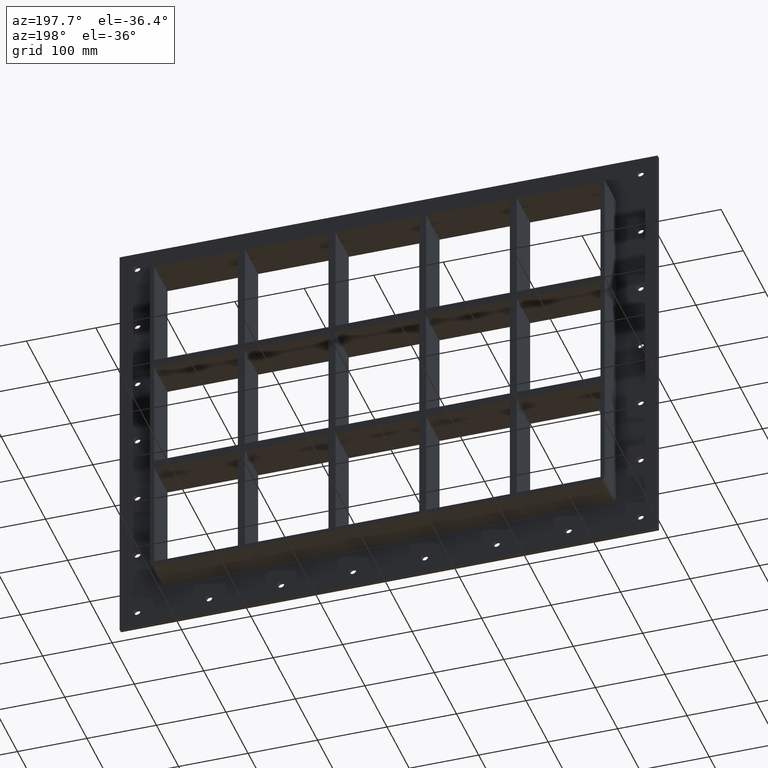
[diagram: clean part render]
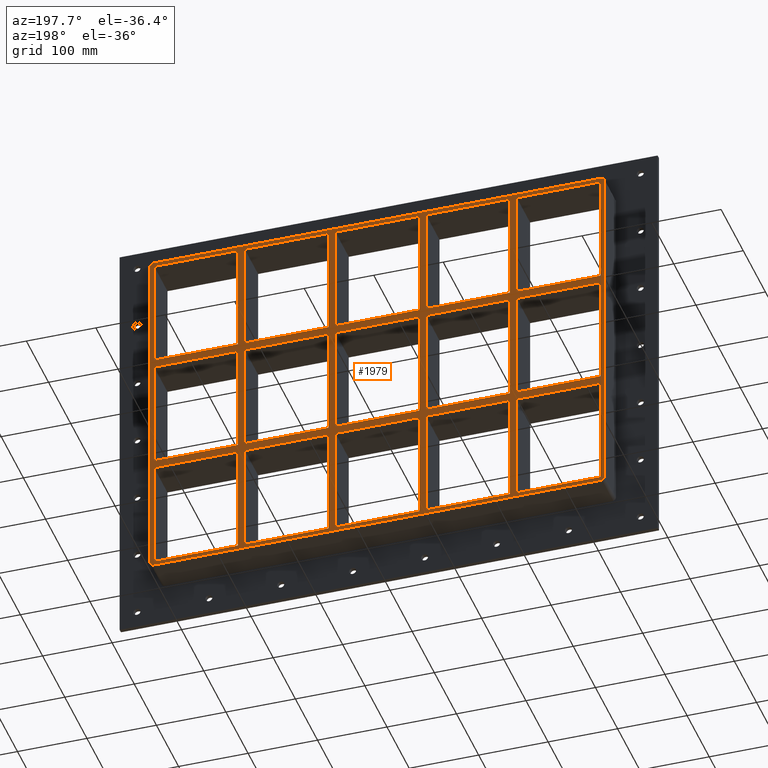
[diagram: same view with one face highlighted and labeled with its STEP entity id]
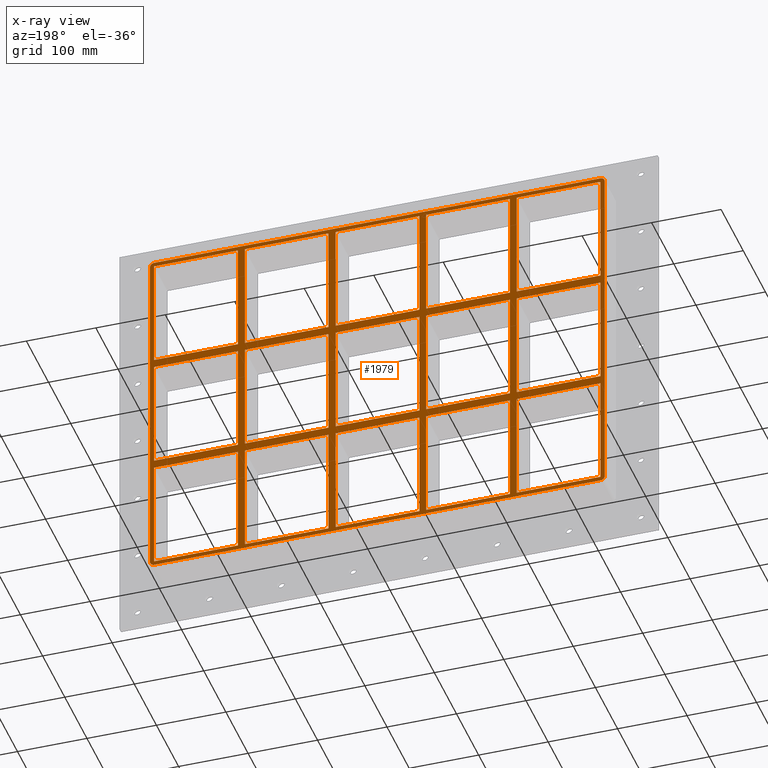
[diagram: x-ray of the same camera — body ghosted, the highlighted face saturated]
A machine part, auxiliary view. The second image highlights one B-rep face of the part: STEP entity #1979.
The next image is the same camera in x-ray: the body ghosted, the highlighted face saturated — about 0% of this face is hidden behind the body in this view.
In plain terms, the highlighted planar face has unit normal (0, 1, 0).
Its self-contained STEP definition (entity closure, byte-faithful):
#803=CARTESIAN_POINT('',(-200.75000000000134,57.0,79.749999999990564));
#804=VERTEX_POINT('',#803);
#819=CARTESIAN_POINT('',(-321.24999999999972,57.0,79.749999999990536));
#820=VERTEX_POINT('',#819);
#827=CARTESIAN_POINT('',(-200.75000000000136,57.0,79.749999999990564));
#828=DIRECTION('',(-1.0,0.0,0.0));
#829=VECTOR('',#828,120.49999999999841);
#830=LINE('',#827,#829);
#831=EDGE_CURVE('',#804,#820,#830,.T.);
#843=CARTESIAN_POINT('',(-70.250000000001407,57.0,79.749999999990607));
#844=VERTEX_POINT('',#843);
#859=CARTESIAN_POINT('',(-190.75000000000728,57.0,79.749999999990564));
#860=VERTEX_POINT('',#859);
#867=CARTESIAN_POINT('',(-70.250000000001421,57.0,79.749999999990607));
#868=DIRECTION('',(-1.0,0.0,0.0));
#869=VECTOR('',#868,120.50000000000585);
#870=LINE('',#867,#869);
#871=EDGE_CURVE('',#844,#860,#870,.T.);
#883=CARTESIAN_POINT('',(60.249999999998671,57.0,79.749999999990649));
#884=VERTEX_POINT('',#883);
#899=CARTESIAN_POINT('',(-60.250000000007304,57.0,79.749999999990607));
#900=VERTEX_POINT('',#899);
#907=CARTESIAN_POINT('',(60.249999999998693,57.0,79.749999999990635));
#908=DIRECTION('',(-1.0,0.0,0.0));
#909=VECTOR('',#908,120.50000000000597);
#910=LINE('',#907,#909);
#911=EDGE_CURVE('',#884,#900,#910,.T.);
#921=CARTESIAN_POINT('',(200.74999999999278,57.0,79.749999999990692));
#922=VERTEX_POINT('',#921);
#931=CARTESIAN_POINT('',(321.25,57.0,79.74999999999072));
#932=VERTEX_POINT('',#931);
#933=CARTESIAN_POINT('',(321.25,57.0,79.74999999999072));
#934=DIRECTION('',(-1.0,0.0,0.0));
#935=VECTOR('',#934,120.50000000000722);
#936=LINE('',#933,#935);
#937=EDGE_CURVE('',#932,#922,#936,.T.);
#963=CARTESIAN_POINT('',(190.74999999999869,57.0,79.749999999990692));
#964=VERTEX_POINT('',#963);
#979=CARTESIAN_POINT('',(70.249999999992738,57.0,79.749999999990649));
#980=VERTEX_POINT('',#979);
#987=CARTESIAN_POINT('',(190.74999999999869,57.0,79.749999999990678));
#988=DIRECTION('',(-1.0,0.0,0.0));
#989=VECTOR('',#988,120.50000000000597);
#990=LINE('',#987,#989);
#991=EDGE_CURVE('',#964,#980,#990,.T.);
#1001=CARTESIAN_POINT('',(-200.75000000000134,57.0,91.750000000000043));
#1002=VERTEX_POINT('',#1001);
#1011=CARTESIAN_POINT('',(-321.24999999999972,57.0,91.750000000000085));
#1012=VERTEX_POINT('',#1011);
#1013=CARTESIAN_POINT('',(-321.24999999999972,57.0,91.750000000000085));
#1014=DIRECTION('',(1.0,0.0,0.0));
#1015=VECTOR('',#1014,120.49999999999838);
#1016=LINE('',#1013,#1015);
#1017=EDGE_CURVE('',#1012,#1002,#1016,.T.);
#1043=CARTESIAN_POINT('',(200.74999999999278,57.0,91.750000000000085));
#1044=VERTEX_POINT('',#1043);
#1059=CARTESIAN_POINT('',(321.25,57.0,91.750000000000085));
#1060=VERTEX_POINT('',#1059);
#1067=CARTESIAN_POINT('',(200.74999999999278,57.0,91.750000000000085));
#1068=DIRECTION('',(1.0,0.0,0.0));
#1069=VECTOR('',#1068,120.50000000000728);
#1070=LINE('',#1067,#1069);
#1071=EDGE_CURVE('',#1044,#1060,#1070,.T.);
#1081=CARTESIAN_POINT('',(-70.250000000001336,57.0,91.750000000000085));
#1082=VERTEX_POINT('',#1081);
#1091=CARTESIAN_POINT('',(-190.75000000000728,57.0,91.750000000000085));
#1092=VERTEX_POINT('',#1091);
#1093=CARTESIAN_POINT('',(-190.75000000000728,57.0,91.750000000000085));
#1094=DIRECTION('',(1.0,0.0,0.0));
#1095=VECTOR('',#1094,120.50000000000594);
#1096=LINE('',#1093,#1095);
#1097=EDGE_CURVE('',#1092,#1082,#1096,.T.);
#1121=CARTESIAN_POINT('',(60.249999999998636,57.0,91.750000000000085));
#1122=VERTEX_POINT('',#1121);
#1131=CARTESIAN_POINT('',(-60.250000000007269,57.0,91.750000000000085));
#1132=VERTEX_POINT('',#1131);
#1133=CARTESIAN_POINT('',(-60.250000000007276,57.0,91.750000000000085));
#1134=DIRECTION('',(1.0,0.0,0.0));
#1135=VECTOR('',#1134,120.50000000000591);
#1136=LINE('',#1133,#1135);
#1137=EDGE_CURVE('',#1132,#1122,#1136,.T.);
#1161=CARTESIAN_POINT('',(190.74999999999869,57.0,91.750000000000085));
#1162=VERTEX_POINT('',#1161);
#1171=CARTESIAN_POINT('',(70.249999999992738,57.0,91.750000000000085));
#1172=VERTEX_POINT('',#1171);
#1173=CARTESIAN_POINT('',(70.249999999992724,57.0,91.750000000000085));
#1174=DIRECTION('',(1.0,0.0,0.0));
#1175=VECTOR('',#1174,120.50000000000597);
#1176=LINE('',#1173,#1175);
#1177=EDGE_CURVE('',#1172,#1162,#1176,.T.);
#1202=CARTESIAN_POINT('',(-321.25,57.0,251.25000000000006));
#1203=VERTEX_POINT('',#1202);
#1204=CARTESIAN_POINT('',(-321.25,57.0,251.25000000000009));
#1205=DIRECTION('',(0.0,0.0,-1.0));
#1206=VECTOR('',#1205,159.5);
#1207=LINE('',#1204,#1206);
#1208=EDGE_CURVE('',#1203,#1012,#1207,.T.);
#1233=CARTESIAN_POINT('',(321.25,57.0,-79.749999999999943));
#1234=VERTEX_POINT('',#1233);
#1235=CARTESIAN_POINT('',(321.25000000000011,57.0,-79.749999999999929));
#1236=DIRECTION('',(0.0,0.0,1.0));
#1237=VECTOR('',#1236,159.49999999999065);
#1238=LINE('',#1235,#1237);
#1239=EDGE_CURVE('',#1234,#932,#1238,.T.);
#1272=CARTESIAN_POINT('',(321.25000000000011,57.0,251.25000000000006));
#1273=VERTEX_POINT('',#1272);
#1280=CARTESIAN_POINT('',(321.25000000000011,57.0,91.750000000000071));
#1281=DIRECTION('',(0.0,0.0,1.0));
#1282=VECTOR('',#1281,159.5);
#1283=LINE('',#1280,#1282);
#1284=EDGE_CURVE('',#1060,#1273,#1283,.T.);
#1303=CARTESIAN_POINT('',(190.74999999999869,57.0,251.25000000000006));
#1304=VERTEX_POINT('',#1303);
#1311=CARTESIAN_POINT('',(190.74999999999869,57.0,91.750000000000057));
#1312=DIRECTION('',(0.0,0.0,1.0));
#1313=VECTOR('',#1312,159.5);
#1314=LINE('',#1311,#1313);
#1315=EDGE_CURVE('',#1162,#1304,#1314,.T.);
#1326=CARTESIAN_POINT('',(200.74999999999278,57.0,251.25000000000006));
#1327=VERTEX_POINT('',#1326);
#1328=CARTESIAN_POINT('',(200.74999999999278,57.0,251.25000000000006));
#1329=DIRECTION('',(0.0,0.0,-1.0));
#1330=VECTOR('',#1329,159.5);
#1331=LINE('',#1328,#1330);
#1332=EDGE_CURVE('',#1327,#1044,#1331,.T.);
#1365=CARTESIAN_POINT('',(60.249999999998636,57.0,251.25000000000006));
#1366=VERTEX_POINT('',#1365);
#1373=CARTESIAN_POINT('',(60.249999999998657,57.0,91.750000000000057));
#1374=DIRECTION('',(0.0,0.0,1.0));
#1375=VECTOR('',#1374,159.5);
#1376=LINE('',#1373,#1375);
#1377=EDGE_CURVE('',#1122,#1366,#1376,.T.);
#1388=CARTESIAN_POINT('',(70.249999999992738,57.0,251.25000000000006));
#1389=VERTEX_POINT('',#1388);
#1390=CARTESIAN_POINT('',(70.249999999992738,57.0,251.25000000000006));
#1391=DIRECTION('',(0.0,0.0,-1.0));
#1392=VECTOR('',#1391,159.5);
#1393=LINE('',#1390,#1392);
#1394=EDGE_CURVE('',#1389,#1172,#1393,.T.);
#1427=CARTESIAN_POINT('',(-70.250000000001364,57.0,251.25000000000006));
#1428=VERTEX_POINT('',#1427);
#1435=CARTESIAN_POINT('',(-70.25000000000135,57.0,91.750000000000057));
#1436=DIRECTION('',(0.0,0.0,1.0));
#1437=VECTOR('',#1436,159.5);
#1438=LINE('',#1435,#1437);
#1439=EDGE_CURVE('',#1082,#1428,#1438,.T.);
#1450=CARTESIAN_POINT('',(-60.250000000007269,57.0,251.25000000000006));
#1451=VERTEX_POINT('',#1450);
#1452=CARTESIAN_POINT('',(-60.250000000007269,57.0,251.25000000000006));
#1453=DIRECTION('',(0.0,0.0,-1.0));
#1454=VECTOR('',#1453,159.5);
#1455=LINE('',#1452,#1454);
#1456=EDGE_CURVE('',#1451,#1132,#1455,.T.);
#1489=CARTESIAN_POINT('',(-200.75000000000136,57.0,251.25000000000006));
#1490=VERTEX_POINT('',#1489);
#1497=CARTESIAN_POINT('',(-200.75000000000136,57.0,91.750000000000057));
#1498=DIRECTION('',(0.0,0.0,1.0));
#1499=VECTOR('',#1498,159.5);
#1500=LINE('',#1497,#1499);
#1501=EDGE_CURVE('',#1002,#1490,#1500,.T.);
#1512=CARTESIAN_POINT('',(-200.75000000000131,57.0,-79.749999999999943));
#1513=VERTEX_POINT('',#1512);
#1514=CARTESIAN_POINT('',(-200.75000000000134,57.0,-79.749999999999943));
#1515=DIRECTION('',(0.0,0.0,1.0));
#1516=VECTOR('',#1515,159.49999999999051);
#1517=LINE('',#1514,#1516);
#1518=EDGE_CURVE('',#1513,#804,#1517,.T.);
#1543=CARTESIAN_POINT('',(-190.75000000000728,57.0,251.25000000000006));
#1544=VERTEX_POINT('',#1543);
#1545=CARTESIAN_POINT('',(-190.75000000000728,57.0,251.25000000000006));
#1546=DIRECTION('',(0.0,0.0,-1.0));
#1547=VECTOR('',#1546,159.5);
#1548=LINE('',#1545,#1547);
#1549=EDGE_CURVE('',#1544,#1092,#1548,.T.);
#1568=CARTESIAN_POINT('',(-5.370858E-014,57.0,0.0));
#1569=DIRECTION('',(0.0,1.0,0.0));
#1570=DIRECTION('',(0.0,0.0,1.0));
#1571=AXIS2_PLACEMENT_3D('',#1568,#1569,#1570);
#1572=PLANE('',#1571);
#1573=CARTESIAN_POINT('',(321.25,57.0,-257.25));
#1574=VERTEX_POINT('',#1573);
#1575=CARTESIAN_POINT('',(327.25,57.0,-251.25));
#1576=VERTEX_POINT('',#1575);
#1577=CARTESIAN_POINT('',(321.25,57.0,-251.25));
#1578=DIRECTION('',(0.0,-1.0,0.0));
#1579=DIRECTION('',(0.707106781186543,0.0,-0.707106781186552));
#1580=AXIS2_PLACEMENT_3D('',#1577,#1578,#1579);
#1581=CIRCLE('',#1580,6.000000000000001);
#1582=EDGE_CURVE('',#1574,#1576,#1581,.T.);
#1583=ORIENTED_EDGE('',*,*,#1582,.F.);
#1584=CARTESIAN_POINT('',(-321.25000000000011,57.0,-257.25));
#1585=VERTEX_POINT('',#1584);
#1586=CARTESIAN_POINT('',(321.25,57.0,-257.25));
#1587=DIRECTION('',(-1.0,0.0,0.0));
#1588=VECTOR('',#1587,642.50000000000011);
#1589=LINE('',#1586,#1588);
#1590=EDGE_CURVE('',#1574,#1585,#1589,.T.);
#1591=ORIENTED_EDGE('',*,*,#1590,.T.);
#1592=CARTESIAN_POINT('',(-327.25000000000011,57.0,-251.25));
#1593=VERTEX_POINT('',#1592);
#1594=CARTESIAN_POINT('',(-321.25000000000006,57.0,-251.25));
#1595=DIRECTION('',(0.0,-1.0,0.0));
#1596=DIRECTION('',(-0.707106781186552,0.0,-0.707106781186543));
#1597=AXIS2_PLACEMENT_3D('',#1594,#1595,#1596);
#1598=CIRCLE('',#1597,6.0);
#1599=EDGE_CURVE('',#1593,#1585,#1598,.T.);
#1600=ORIENTED_EDGE('',*,*,#1599,.F.);
#1601=CARTESIAN_POINT('',(-327.25000000000011,57.0,251.25));
#1602=VERTEX_POINT('',#1601);
#1603=CARTESIAN_POINT('',(-327.25000000000011,57.0,-251.25));
#1604=DIRECTION('',(0.0,0.0,1.0));
#1605=VECTOR('',#1604,502.5);
#1606=LINE('',#1603,#1605);
#1607=EDGE_CURVE('',#1593,#1602,#1606,.T.);
#1608=ORIENTED_EDGE('',*,*,#1607,.T.);
#1609=CARTESIAN_POINT('',(-321.25000000000011,57.0,257.25));
#1610=VERTEX_POINT('',#1609);
#1611=CARTESIAN_POINT('',(-321.25000000000011,57.0,251.25));
#1612=DIRECTION('',(0.0,-1.0,0.0));
#1613=DIRECTION('',(-0.707106781186543,0.0,0.707106781186552));
#1614=AXIS2_PLACEMENT_3D('',#1611,#1612,#1613);
#1615=CIRCLE('',#1614,6.000000000000001);
#1616=EDGE_CURVE('',#1610,#1602,#1615,.T.);
#1617=ORIENTED_EDGE('',*,*,#1616,.F.);
#1618=CARTESIAN_POINT('',(321.25000000000006,57.0,257.25));
#1619=VERTEX_POINT('',#1618);
#1620=CARTESIAN_POINT('',(-321.25000000000017,57.0,257.25));
#1621=DIRECTION('',(1.0,0.0,0.0));
#1622=VECTOR('',#1621,642.50000000000023);
#1623=LINE('',#1620,#1622);
#1624=EDGE_CURVE('',#1610,#1619,#1623,.T.);
#1625=ORIENTED_EDGE('',*,*,#1624,.T.);
#1626=CARTESIAN_POINT('',(327.25,57.0,251.25));
#1627=VERTEX_POINT('',#1626);
#1628=CARTESIAN_POINT('',(321.25,57.0,251.25));
#1629=DIRECTION('',(0.0,-1.0,0.0));
#1630=DIRECTION('',(0.707106781186543,0.0,0.707106781186552));
#1631=AXIS2_PLACEMENT_3D('',#1628,#1629,#1630);
#1632=CIRCLE('',#1631,6.000000000000001);
#1633=EDGE_CURVE('',#1627,#1619,#1632,.T.);
#1634=ORIENTED_EDGE('',*,*,#1633,.F.);
#1635=CARTESIAN_POINT('',(327.25,57.0,251.25));
#1636=DIRECTION('',(0.0,0.0,-1.0));
#1637=VECTOR('',#1636,502.5);
#1638=LINE('',#1635,#1637);
#1639=EDGE_CURVE('',#1627,#1576,#1638,.T.);
#1640=ORIENTED_EDGE('',*,*,#1639,.T.);
#1641=EDGE_LOOP('',(#1583,#1591,#1600,#1608,#1617,#1625,#1634,#1640));
#1642=FACE_OUTER_BOUND('',#1641,.T.);
#1643=CARTESIAN_POINT('',(-321.24999999999972,57.0,-79.749999999999943));
#1644=VERTEX_POINT('',#1643);
#1645=CARTESIAN_POINT('',(-321.25,57.0,79.749999999990536));
#1646=DIRECTION('',(0.0,0.0,-1.0));
#1647=VECTOR('',#1646,159.49999999999048);
#1648=LINE('',#1645,#1647);
#1649=EDGE_CURVE('',#820,#1644,#1648,.T.);
#1650=ORIENTED_EDGE('',*,*,#1649,.T.);
#1651=CARTESIAN_POINT('',(-321.24999999999972,57.0,-79.749999999999943));
#1652=DIRECTION('',(1.0,0.0,0.0));
#1653=VECTOR('',#1652,120.49999999999841);
#1654=LINE('',#1651,#1653);
#1655=EDGE_CURVE('',#1644,#1513,#1654,.T.);
#1656=ORIENTED_EDGE('',*,*,#1655,.T.);
#1657=ORIENTED_EDGE('',*,*,#1518,.T.);
#1658=ORIENTED_EDGE('',*,*,#831,.T.);
#1659=EDGE_LOOP('',(#1650,#1656,#1657,#1658));
#1660=FACE_BOUND('',#1659,.T.);
#1661=ORIENTED_EDGE('',*,*,#1284,.T.);
#1662=CARTESIAN_POINT('',(321.25000000000011,57.0,251.25000000000003));
#1663=DIRECTION('',(-1.0,0.0,0.0));
#1664=VECTOR('',#1663,120.50000000000736);
#1665=LINE('',#1662,#1664);
#1666=EDGE_CURVE('',#1273,#1327,#1665,.T.);
#1667=ORIENTED_EDGE('',*,*,#1666,.T.);
#1668=ORIENTED_EDGE('',*,*,#1332,.T.);
#1669=ORIENTED_EDGE('',*,*,#1071,.T.);
#1670=EDGE_LOOP('',(#1661,#1667,#1668,#1669));
#1671=FACE_BOUND('',#1670,.T.);
#1672=ORIENTED_EDGE('',*,*,#1315,.T.);
#1673=CARTESIAN_POINT('',(190.74999999999872,57.0,251.25000000000003));
#1674=DIRECTION('',(-1.0,0.0,0.0));
#1675=VECTOR('',#1674,120.50000000000597);
#1676=LINE('',#1673,#1675);
#1677=EDGE_CURVE('',#1304,#1389,#1676,.T.);
#1678=ORIENTED_EDGE('',*,*,#1677,.T.);
#1679=ORIENTED_EDGE('',*,*,#1394,.T.);
#1680=ORIENTED_EDGE('',*,*,#1177,.T.);
#1681=EDGE_LOOP('',(#1672,#1678,#1679,#1680));
#1682=FACE_BOUND('',#1681,.T.);
#1683=ORIENTED_EDGE('',*,*,#1377,.T.);
#1684=CARTESIAN_POINT('',(60.249999999998636,57.0,251.25000000000003));
#1685=DIRECTION('',(-1.0,0.0,0.0));
#1686=VECTOR('',#1685,120.5000000000059);
#1687=LINE('',#1684,#1686);
#1688=EDGE_CURVE('',#1366,#1451,#1687,.T.);
#1689=ORIENTED_EDGE('',*,*,#1688,.T.);
#1690=ORIENTED_EDGE('',*,*,#1456,.T.);
#1691=ORIENTED_EDGE('',*,*,#1137,.T.);
#1692=EDGE_LOOP('',(#1683,#1689,#1690,#1691));
#1693=FACE_BOUND('',#1692,.T.);
#1694=ORIENTED_EDGE('',*,*,#1439,.T.);
#1695=CARTESIAN_POINT('',(-70.250000000001364,57.0,251.25000000000003));
#1696=DIRECTION('',(-1.0,0.0,0.0));
#1697=VECTOR('',#1696,120.50000000000591);
#1698=LINE('',#1695,#1697);
#1699=EDGE_CURVE('',#1428,#1544,#1698,.T.);
#1700=ORIENTED_EDGE('',*,*,#1699,.T.);
#1701=ORIENTED_EDGE('',*,*,#1549,.T.);
#1702=ORIENTED_EDGE('',*,*,#1097,.T.);
#1703=EDGE_LOOP('',(#1694,#1700,#1701,#1702));
#1704=FACE_BOUND('',#1703,.T.);
#1705=ORIENTED_EDGE('',*,*,#937,.T.);
#1706=CARTESIAN_POINT('',(200.74999999999278,57.0,-79.749999999999943));
#1707=VERTEX_POINT('',#1706);
#1708=CARTESIAN_POINT('',(200.74999999999278,57.0,79.749999999990678));
#1709=DIRECTION('',(0.0,0.0,-1.0));
#1710=VECTOR('',#1709,159.49999999999062);
#1711=LINE('',#1708,#1710);
#1712=EDGE_CURVE('',#922,#1707,#1711,.T.);
#1713=ORIENTED_EDGE('',*,*,#1712,.T.);
#1714=CARTESIAN_POINT('',(200.74999999999278,57.0,-79.749999999999943));
#1715=DIRECTION('',(1.0,0.0,0.0));
#1716=VECTOR('',#1715,120.50000000000728);
#1717=LINE('',#1714,#1716);
#1718=EDGE_CURVE('',#1707,#1234,#1717,.T.);
#1719=ORIENTED_EDGE('',*,*,#1718,.T.);
#1720=ORIENTED_EDGE('',*,*,#1239,.T.);
#1721=EDGE_LOOP('',(#1705,#1713,#1719,#1720));
#1722=FACE_BOUND('',#1721,.T.);
#1723=ORIENTED_EDGE('',*,*,#991,.T.);
#1724=CARTESIAN_POINT('',(70.249999999992738,57.0,-79.749999999999943));
#1725=VERTEX_POINT('',#1724);
#1726=CARTESIAN_POINT('',(70.249999999992738,57.0,79.749999999990621));
#1727=DIRECTION('',(0.0,0.0,-1.0));
#1728=VECTOR('',#1727,159.49999999999056);
#1729=LINE('',#1726,#1728);
#1730=EDGE_CURVE('',#980,#1725,#1729,.T.);
#1731=ORIENTED_EDGE('',*,*,#1730,.T.);
#1732=CARTESIAN_POINT('',(190.74999999999872,57.0,-79.749999999999943));
#1733=VERTEX_POINT('',#1732);
#1734=CARTESIAN_POINT('',(70.249999999992724,57.0,-79.749999999999943));
#1735=DIRECTION('',(1.0,0.0,0.0));
#1736=VECTOR('',#1735,120.50000000000603);
#1737=LINE('',#1734,#1736);
#1738=EDGE_CURVE('',#1725,#1733,#1737,.T.);
#1739=ORIENTED_EDGE('',*,*,#1738,.T.);
#1740=CARTESIAN_POINT('',(190.74999999999872,57.0,-79.749999999999943));
#1741=DIRECTION('',(0.0,0.0,1.0));
#1742=VECTOR('',#1741,159.49999999999068);
#1743=LINE('',#1740,#1742);
#1744=EDGE_CURVE('',#1733,#964,#1743,.T.);
#1745=ORIENTED_EDGE('',*,*,#1744,.T.);
#1746=EDGE_LOOP('',(#1723,#1731,#1739,#1745));
#1747=FACE_BOUND('',#1746,.T.);
#1748=ORIENTED_EDGE('',*,*,#911,.T.);
#1749=CARTESIAN_POINT('',(-60.250000000007269,57.0,-79.749999999999943));
#1750=VERTEX_POINT('',#1749);
#1751=CARTESIAN_POINT('',(-60.250000000007269,57.0,79.749999999990592));
#1752=DIRECTION('',(0.0,0.0,-1.0));
#1753=VECTOR('',#1752,159.49999999999054);
#1754=LINE('',#1751,#1753);
#1755=EDGE_CURVE('',#900,#1750,#1754,.T.);
#1756=ORIENTED_EDGE('',*,*,#1755,.T.);
#1757=CARTESIAN_POINT('',(60.249999999998678,57.0,-79.749999999999943));
#1758=VERTEX_POINT('',#1757);
#1759=CARTESIAN_POINT('',(-60.250000000007276,57.0,-79.749999999999943));
#1760=DIRECTION('',(1.0,0.0,0.0));
#1761=VECTOR('',#1760,120.50000000000597);
#1762=LINE('',#1759,#1761);
#1763=EDGE_CURVE('',#1750,#1758,#1762,.T.);
#1764=ORIENTED_EDGE('',*,*,#1763,.T.);
#1765=CARTESIAN_POINT('',(60.249999999998685,57.0,-79.749999999999943));
#1766=DIRECTION('',(0.0,0.0,1.0));
#1767=VECTOR('',#1766,159.49999999999056);
#1768=LINE('',#1765,#1767);
#1769=EDGE_CURVE('',#1758,#884,#1768,.T.);
#1770=ORIENTED_EDGE('',*,*,#1769,.T.);
#1771=EDGE_LOOP('',(#1748,#1756,#1764,#1770));
#1772=FACE_BOUND('',#1771,.T.);
#1773=ORIENTED_EDGE('',*,*,#871,.T.);
#1774=CARTESIAN_POINT('',(-190.75000000000728,57.0,-79.749999999999943));
#1775=VERTEX_POINT('',#1774);
#1776=CARTESIAN_POINT('',(-190.75000000000728,57.0,79.749999999990564));
#1777=DIRECTION('',(0.0,0.0,-1.0));
#1778=VECTOR('',#1777,159.49999999999051);
#1779=LINE('',#1776,#1778);
#1780=EDGE_CURVE('',#860,#1775,#1779,.T.);
#1781=ORIENTED_EDGE('',*,*,#1780,.T.);
#1782=CARTESIAN_POINT('',(-70.250000000001322,57.0,-79.749999999999943));
#1783=VERTEX_POINT('',#1782);
#1784=CARTESIAN_POINT('',(-190.75000000000728,57.0,-79.749999999999943));
#1785=DIRECTION('',(1.0,0.0,0.0));
#1786=VECTOR('',#1785,120.50000000000594);
#1787=LINE('',#1784,#1786);
#1788=EDGE_CURVE('',#1775,#1783,#1787,.T.);
#1789=ORIENTED_EDGE('',*,*,#1788,.T.);
#1790=CARTESIAN_POINT('',(-70.250000000001336,57.0,-79.749999999999943));
#1791=DIRECTION('',(0.0,0.0,1.0));
#1792=VECTOR('',#1791,159.49999999999056);
#1793=LINE('',#1790,#1792);
#1794=EDGE_CURVE('',#1783,#844,#1793,.T.);
#1795=ORIENTED_EDGE('',*,*,#1794,.T.);
#1796=EDGE_LOOP('',(#1773,#1781,#1789,#1795));
#1797=FACE_BOUND('',#1796,.T.);
#1798=CARTESIAN_POINT('',(-321.24999999999972,57.0,-91.750000000009493));
#1799=VERTEX_POINT('',#1798);
#1800=CARTESIAN_POINT('',(-321.25,57.0,-251.25000000000006));
#1801=VERTEX_POINT('',#1800);
#1802=CARTESIAN_POINT('',(-321.25,57.0,-91.750000000009493));
#1803=DIRECTION('',(0.0,0.0,-1.0));
#1804=VECTOR('',#1803,159.49999999999056);
#1805=LINE('',#1802,#1804);
#1806=EDGE_CURVE('',#1799,#1801,#1805,.T.);
#1807=ORIENTED_EDGE('',*,*,#1806,.T.);
#1808=CARTESIAN_POINT('',(-200.75000000000131,57.0,-251.25000000000006));
#1809=VERTEX_POINT('',#1808);
#1810=CARTESIAN_POINT('',(-321.25,57.0,-251.25000000000006));
#1811=DIRECTION('',(1.0,0.0,0.0));
#1812=VECTOR('',#1811,120.49999999999872);
#1813=LINE('',#1810,#1812);
#1814=EDGE_CURVE('',#1801,#1809,#1813,.T.);
#1815=ORIENTED_EDGE('',*,*,#1814,.T.);
#1816=CARTESIAN_POINT('',(-200.75000000000131,57.0,-91.750000000009464));
#1817=VERTEX_POINT('',#1816);
#1818=CARTESIAN_POINT('',(-200.75000000000131,57.0,-251.25000000000006));
#1819=DIRECTION('',(0.0,0.0,1.0));
#1820=VECTOR('',#1819,159.49999999999062);
#1821=LINE('',#1818,#1820);
#1822=EDGE_CURVE('',#1809,#1817,#1821,.T.);
#1823=ORIENTED_EDGE('',*,*,#1822,.T.);
#1824=CARTESIAN_POINT('',(-200.75000000000136,57.0,-91.75000000000945));
#1825=DIRECTION('',(-1.0,0.0,0.0));
#1826=VECTOR('',#1825,120.49999999999841);
#1827=LINE('',#1824,#1826);
#1828=EDGE_CURVE('',#1817,#1799,#1827,.T.);
#1829=ORIENTED_EDGE('',*,*,#1828,.T.);
#1830=EDGE_LOOP('',(#1807,#1815,#1823,#1829));
#1831=FACE_BOUND('',#1830,.T.);
#1832=CARTESIAN_POINT('',(-70.250000000001307,57.0,-251.25000000000006));
#1833=VERTEX_POINT('',#1832);
#1834=CARTESIAN_POINT('',(-70.250000000001322,57.0,-91.750000000009422));
#1835=VERTEX_POINT('',#1834);
#1836=CARTESIAN_POINT('',(-70.250000000001307,57.0,-251.25000000000006));
#1837=DIRECTION('',(0.0,0.0,1.0));
#1838=VECTOR('',#1837,159.49999999999065);
#1839=LINE('',#1836,#1838);
#1840=EDGE_CURVE('',#1833,#1835,#1839,.T.);
#1841=ORIENTED_EDGE('',*,*,#1840,.T.);
#1842=CARTESIAN_POINT('',(-190.75000000000728,57.0,-91.750000000009464));
#1843=VERTEX_POINT('',#1842);
#1844=CARTESIAN_POINT('',(-70.250000000001364,57.0,-91.750000000009408));
#1845=DIRECTION('',(-1.0,0.0,0.0));
#1846=VECTOR('',#1845,120.50000000000591);
#1847=LINE('',#1844,#1846);
#1848=EDGE_CURVE('',#1835,#1843,#1847,.T.);
#1849=ORIENTED_EDGE('',*,*,#1848,.T.);
#1850=CARTESIAN_POINT('',(-190.75000000000728,57.0,-251.24999999998431));
#1851=VERTEX_POINT('',#1850);
#1852=CARTESIAN_POINT('',(-190.75000000000728,57.0,-91.750000000009436));
#1853=DIRECTION('',(0.0,0.0,-1.0));
#1854=VECTOR('',#1853,159.49999999997488);
#1855=LINE('',#1852,#1854);
#1856=EDGE_CURVE('',#1843,#1851,#1855,.T.);
#1857=ORIENTED_EDGE('',*,*,#1856,.T.);
#1858=CARTESIAN_POINT('',(-190.75000000000725,57.0,-251.25000000000006));
#1859=DIRECTION('',(1.0,0.0,0.0));
#1860=VECTOR('',#1859,120.50000000000594);
#1861=LINE('',#1858,#1860);
#1862=EDGE_CURVE('',#1851,#1833,#1861,.T.);
#1863=ORIENTED_EDGE('',*,*,#1862,.T.);
#1864=EDGE_LOOP('',(#1841,#1849,#1857,#1863));
#1865=FACE_BOUND('',#1864,.T.);
#1866=CARTESIAN_POINT('',(60.249999999998707,57.0,-251.25000000000006));
#1867=VERTEX_POINT('',#1866);
#1868=CARTESIAN_POINT('',(60.249999999998678,57.0,-91.750000000009365));
#1869=VERTEX_POINT('',#1868);
#1870=CARTESIAN_POINT('',(60.249999999998707,57.0,-251.25000000000006));
#1871=DIRECTION('',(0.0,0.0,1.0));
#1872=VECTOR('',#1871,159.49999999999071);
#1873=LINE('',#1870,#1872);
#1874=EDGE_CURVE('',#1867,#1869,#1873,.T.);
#1875=ORIENTED_EDGE('',*,*,#1874,.T.);
#1876=CARTESIAN_POINT('',(-60.250000000007269,57.0,-91.750000000009422));
#1877=VERTEX_POINT('',#1876);
#1878=CARTESIAN_POINT('',(60.249999999998693,57.0,-91.750000000009379));
#1879=DIRECTION('',(-1.0,0.0,0.0));
#1880=VECTOR('',#1879,120.50000000000597);
#1881=LINE('',#1878,#1880);
#1882=EDGE_CURVE('',#1869,#1877,#1881,.T.);
#1883=ORIENTED_EDGE('',*,*,#1882,.T.);
#1884=CARTESIAN_POINT('',(-60.250000000007269,57.0,-251.24999999998431));
#1885=VERTEX_POINT('',#1884);
#1886=CARTESIAN_POINT('',(-60.250000000007269,57.0,-91.750000000009436));
#1887=DIRECTION('',(0.0,0.0,-1.0));
#1888=VECTOR('',#1887,159.49999999997488);
#1889=LINE('',#1886,#1888);
#1890=EDGE_CURVE('',#1877,#1885,#1889,.T.);
#1891=ORIENTED_EDGE('',*,*,#1890,.T.);
#1892=CARTESIAN_POINT('',(-60.250000000007276,57.0,-251.25000000000006));
#1893=DIRECTION('',(1.0,0.0,0.0));
#1894=VECTOR('',#1893,120.50000000000597);
#1895=LINE('',#1892,#1894);
#1896=EDGE_CURVE('',#1885,#1867,#1895,.T.);
#1897=ORIENTED_EDGE('',*,*,#1896,.T.);
#1898=EDGE_LOOP('',(#1875,#1883,#1891,#1897));
#1899=FACE_BOUND('',#1898,.T.);
#1900=CARTESIAN_POINT('',(190.74999999999875,57.0,-251.25000000000006));
#1901=VERTEX_POINT('',#1900);
#1902=CARTESIAN_POINT('',(190.74999999999872,57.0,-91.750000000009337));
#1903=VERTEX_POINT('',#1902);
#1904=CARTESIAN_POINT('',(190.74999999999875,57.0,-251.25000000000006));
#1905=DIRECTION('',(0.0,0.0,1.0));
#1906=VECTOR('',#1905,159.49999999999073);
#1907=LINE('',#1904,#1906);
#1908=EDGE_CURVE('',#1901,#1903,#1907,.T.);
#1909=ORIENTED_EDGE('',*,*,#1908,.T.);
#1910=CARTESIAN_POINT('',(70.249999999992738,57.0,-91.750000000009351));
#1911=VERTEX_POINT('',#1910);
#1912=CARTESIAN_POINT('',(190.74999999999872,57.0,-91.750000000009337));
#1913=DIRECTION('',(-1.0,0.0,0.0));
#1914=VECTOR('',#1913,120.500000000006);
#1915=LINE('',#1912,#1914);
#1916=EDGE_CURVE('',#1903,#1911,#1915,.T.);
#1917=ORIENTED_EDGE('',*,*,#1916,.T.);
#1918=CARTESIAN_POINT('',(70.249999999992738,57.0,-251.24999999998431));
#1919=VERTEX_POINT('',#1918);
#1920=CARTESIAN_POINT('',(70.249999999992738,57.0,-91.750000000009379));
#1921=DIRECTION('',(0.0,0.0,-1.0));
#1922=VECTOR('',#1921,159.49999999997493);
#1923=LINE('',#1920,#1922);
#1924=EDGE_CURVE('',#1911,#1919,#1923,.T.);
#1925=ORIENTED_EDGE('',*,*,#1924,.T.);
#1926=CARTESIAN_POINT('',(70.249999999992724,57.0,-251.25000000000006));
#1927=DIRECTION('',(1.0,0.0,0.0));
#1928=VECTOR('',#1927,120.50000000000603);
#1929=LINE('',#1926,#1928);
#1930=EDGE_CURVE('',#1919,#1901,#1929,.T.);
#1931=ORIENTED_EDGE('',*,*,#1930,.T.);
#1932=EDGE_LOOP('',(#1909,#1917,#1925,#1931));
#1933=FACE_BOUND('',#1932,.T.);
#1934=ORIENTED_EDGE('',*,*,#1017,.T.);
#1935=ORIENTED_EDGE('',*,*,#1501,.T.);
#1936=CARTESIAN_POINT('',(-200.75000000000136,57.0,251.25000000000003));
#1937=DIRECTION('',(-1.0,0.0,0.0));
#1938=VECTOR('',#1937,120.49999999999864);
#1939=LINE('',#1936,#1938);
#1940=EDGE_CURVE('',#1490,#1203,#1939,.T.);
#1941=ORIENTED_EDGE('',*,*,#1940,.T.);
#1942=ORIENTED_EDGE('',*,*,#1208,.T.);
#1943=EDGE_LOOP('',(#1934,#1935,#1941,#1942));
#1944=FACE_BOUND('',#1943,.T.);
#1945=CARTESIAN_POINT('',(200.74999999999278,57.0,-251.24999999998431));
#1946=VERTEX_POINT('',#1945);
#1947=CARTESIAN_POINT('',(321.25000000000011,57.0,-251.25000000000006));
#1948=VERTEX_POINT('',#1947);
#1949=CARTESIAN_POINT('',(200.74999999999278,57.0,-251.25000000000006));
#1950=DIRECTION('',(1.0,0.0,0.0));
#1951=VECTOR('',#1950,120.50000000000733);
#1952=LINE('',#1949,#1951);
#1953=EDGE_CURVE('',#1946,#1948,#1952,.T.);
#1954=ORIENTED_EDGE('',*,*,#1953,.T.);
#1955=CARTESIAN_POINT('',(321.25,57.0,-91.750000000009294));
#1956=VERTEX_POINT('',#1955);
#1957=CARTESIAN_POINT('',(321.25000000000011,57.0,-251.25000000000006));
#1958=DIRECTION('',(0.0,0.0,1.0));
#1959=VECTOR('',#1958,159.49999999999073);
#1960=LINE('',#1957,#1959);
#1961=EDGE_CURVE('',#1948,#1956,#1960,.T.);
#1962=ORIENTED_EDGE('',*,*,#1961,.T.);
#1963=CARTESIAN_POINT('',(200.74999999999278,57.0,-91.750000000009351));
#1964=VERTEX_POINT('',#1963);
#1965=CARTESIAN_POINT('',(321.25,57.0,-91.750000000009294));
#1966=DIRECTION('',(-1.0,0.0,0.0));
#1967=VECTOR('',#1966,120.50000000000722);
#1968=LINE('',#1965,#1967);
#1969=EDGE_CURVE('',#1956,#1964,#1968,.T.);
#1970=ORIENTED_EDGE('',*,*,#1969,.T.);
#1971=CARTESIAN_POINT('',(200.74999999999278,57.0,-91.750000000009379));
#1972=DIRECTION('',(0.0,0.0,-1.0));
#1973=VECTOR('',#1972,159.49999999997493);
#1974=LINE('',#1971,#1973);
#1975=EDGE_CURVE('',#1964,#1946,#1974,.T.);
#1976=ORIENTED_EDGE('',*,*,#1975,.T.);
#1977=EDGE_LOOP('',(#1954,#1962,#1970,#1976));
#1978=FACE_BOUND('',#1977,.T.);
#1979=ADVANCED_FACE('',(#1642,#1660,#1671,#1682,#1693,#1704,#1722,#1747,#1772,#1797,#1831,#1865,#1899,#1933,#1944,#1978),#1572,.T.);